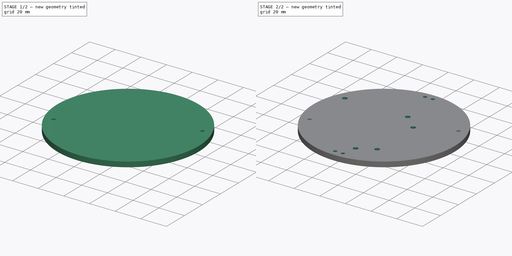
[diagram: build sequence overview — one tinted view per stage of 2, left to right]
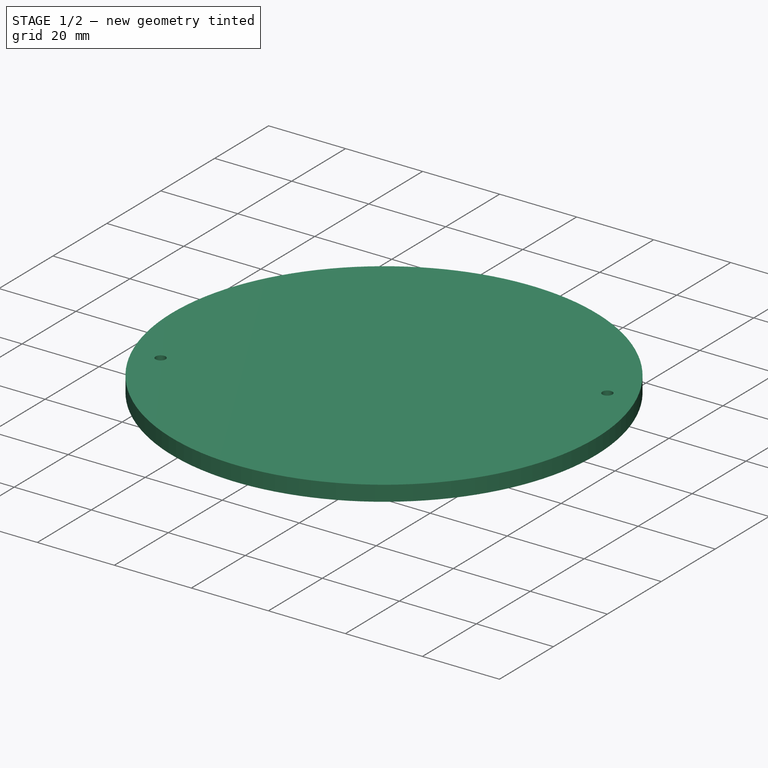
[diagram: stage 1 of 2 — iso view after this stage's code; geometry added in this stage tinted green]
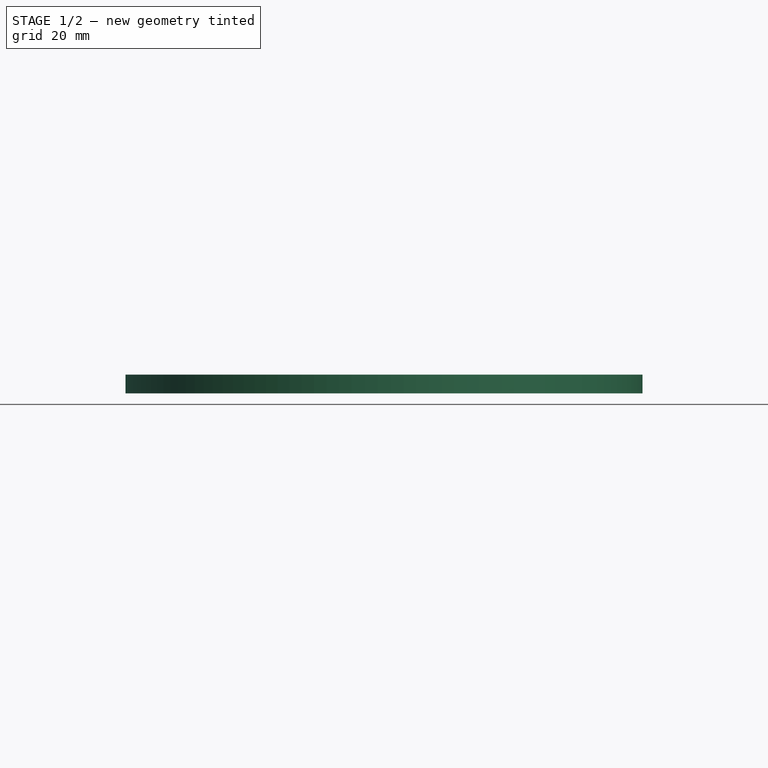
[diagram: stage 1 of 2 — front view after this stage's code; geometry added in this stage tinted green]
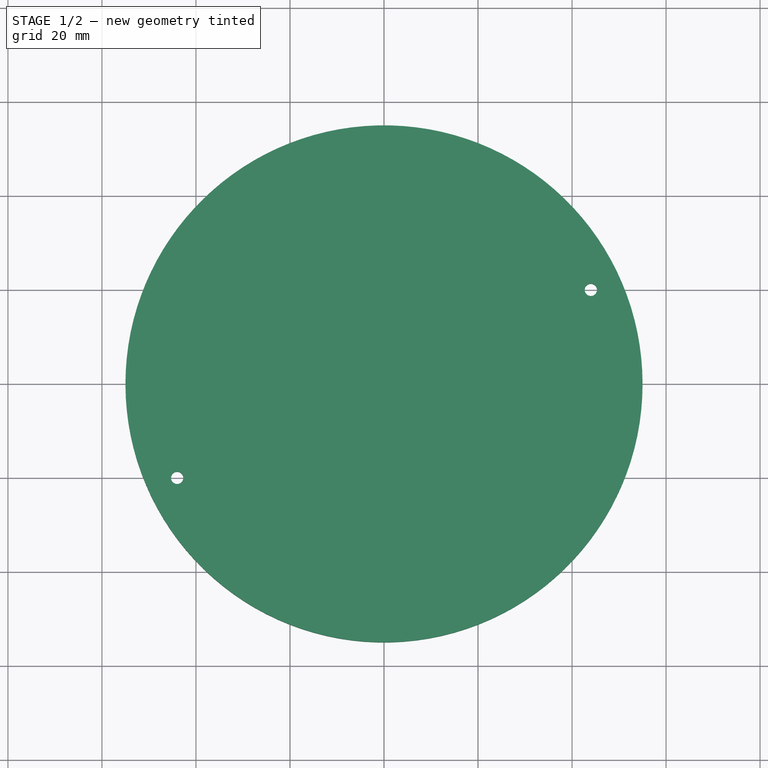
[diagram: stage 1 of 2 — top view after this stage's code; geometry added in this stage tinted green]
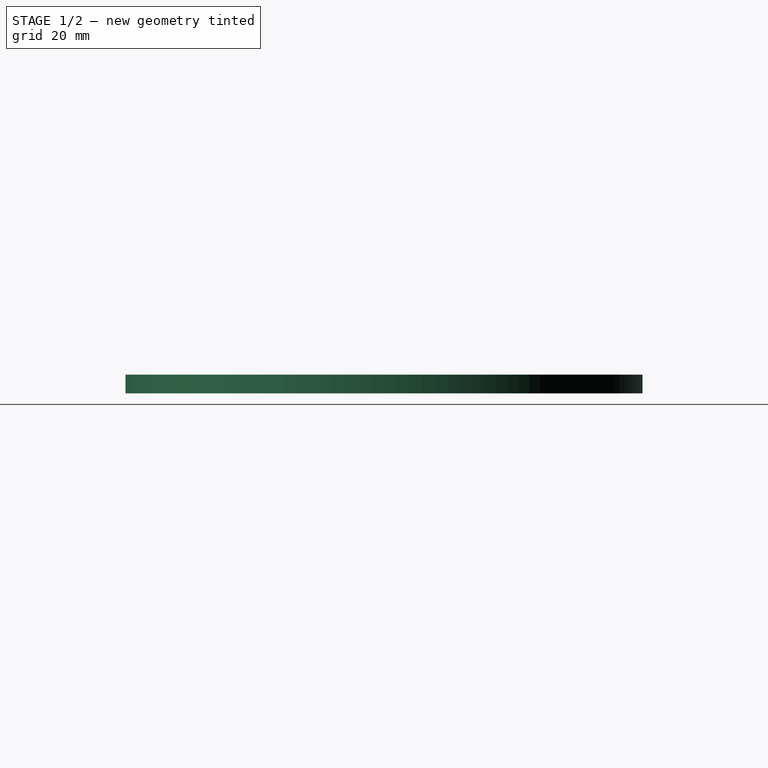
[diagram: stage 1 of 2 — right view after this stage's code; geometry added in this stage tinted green]
FCSTD DOCUMENT  (FreeCAD 0.21R33668 +26 (Git))
Label: board_top
License: All rights reserved
LicenseURL: https://en.wikipedia.org/wiki/All_rights_reserved
objects: Sketcher::SketchObject×4, PartDesign::Pocket×3, PartDesign::Pad×1, PartDesign::Body×1
note: 13 computed .brp shape members not serialized (recipe doc carries the construction recipe); baked Part::Feature solids carry a one-line shape summary decoded from their .brp

FEATURE [Sketcher::SketchObject] Sketch
  FullyConstrained = false
  MapMode = 5
  Support = -> [XY_Plane]
  sketch-geometry (2):
    g0: Circle CenterX=0 CenterY=0 CenterZ=0 NormalX=0 NormalY=0 NormalZ=1 AngleXU=0 Radius=55
    g1: GeomPoint X=-46.4818 Y=29.4015 Z=0
  constraints (3):
    c: Coincident(g0,g-1)
    c: PointOnObject(g1,g0)
    c: Distance(g1,g0) = 55
FEATURE [PartDesign::Pad] Pad
  Direction = (0,0,1)
  Length = 4
  Length2 = 10
  Profile = -> Sketch
  ReferenceAxis = -> Sketch [N_Axis]
  Type = 0
FEATURE [Sketcher::SketchObject] Sketch003
  FullyConstrained = false
  MapMode = 5
  Placement = pos=(0,0,4) rot=(0,0,1;0rad)
  sketch-geometry (10):
    g0: Circle CenterX=44 CenterY=20 CenterZ=0 NormalX=0 NormalY=0 NormalZ=1 AngleXU=0 Radius=5
    g1: Circle CenterX=-44 CenterY=-20 CenterZ=0 NormalX=0 NormalY=0 NormalZ=1 AngleXU=0 Radius=5
    g2: GeomPoint X=-39.0947 Y=-19.0316 Z=0
    g3: GeomPoint X=47.6682 Y=23.3977 Z=0
    g4: LineSegment StartX=0 StartY=-20 StartZ=0 EndX=-44 EndY=-20 EndZ=0
    g5: LineSegment StartX=0 StartY=20 StartZ=0 EndX=44 EndY=20 EndZ=0
    g6: Circle CenterX=-44 CenterY=-20 CenterZ=0 NormalX=0 NormalY=0 NormalZ=1 AngleXU=0 Radius=1.3
    g7: GeomPoint X=-43.3125 Y=-18.8967 Z=0
    g8: Circle CenterX=44 CenterY=20 CenterZ=0 NormalX=0 NormalY=0 NormalZ=1 AngleXU=0 Radius=1.3
    g9: GeomPoint X=43.0923 Y=20.9307 Z=0
  constraints (20):
    c: PointOnObject(g2,g1)
    c: PointOnObject(g3,g0)
    c: Distance(g3,g0) = 5
    c: Distance(g1,g2) = 5
    c: PointOnObject(g4,g-2)
    c: Coincident(g4,g1)
    c: Horizontal(g4)
    c: PointOnObject(g5,g-2)
    c: Coincident(g5,g0)
    c: Horizontal(g5)
    c: Distance(g4) = 44
    c: Distance(g5) = 44
    c: Distance(g5,g-1) = 20
    c: Distance(g-1,g4) = 20
    c: Coincident(g6,g1)
    c: PointOnObject(g7,g6)
    c: Coincident(g8,g0)
    c: PointOnObject(g9,g8)
    c: Distance(g9,g8) = 1.3
    c: Distance(g7,g6) = 1.3
FEATURE [PartDesign::Pocket] Pocket001
  BaseFeature = -> Pad
  Direction = (0,0,-1)
  Length = 5
  Length2 = 5
  Profile = -> Sketch003
  ReferenceAxis = -> Sketch003 [N_Axis]
  Type = 0
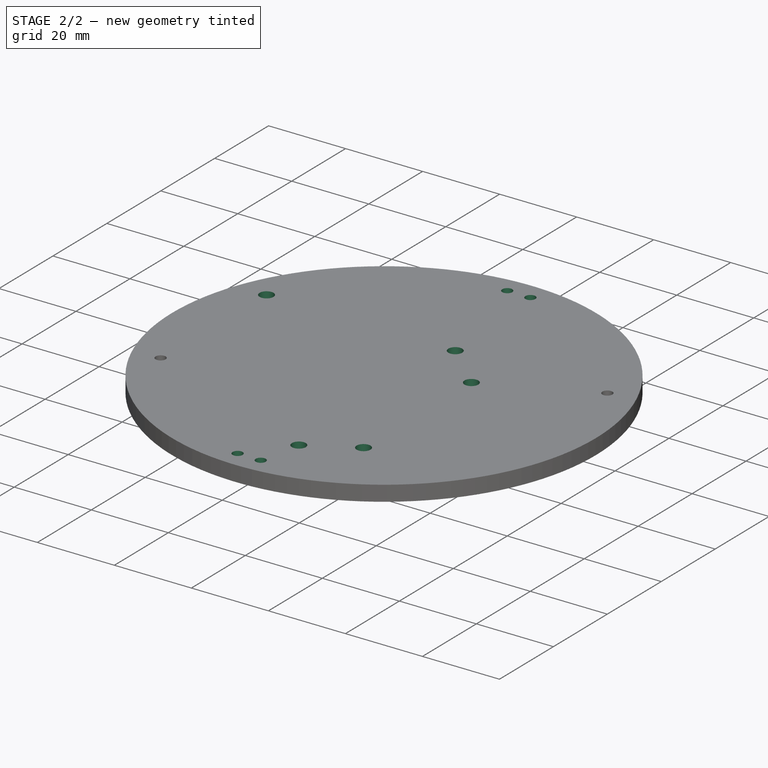
[diagram: stage 2 of 2 — iso view after this stage's code; geometry added in this stage tinted green]
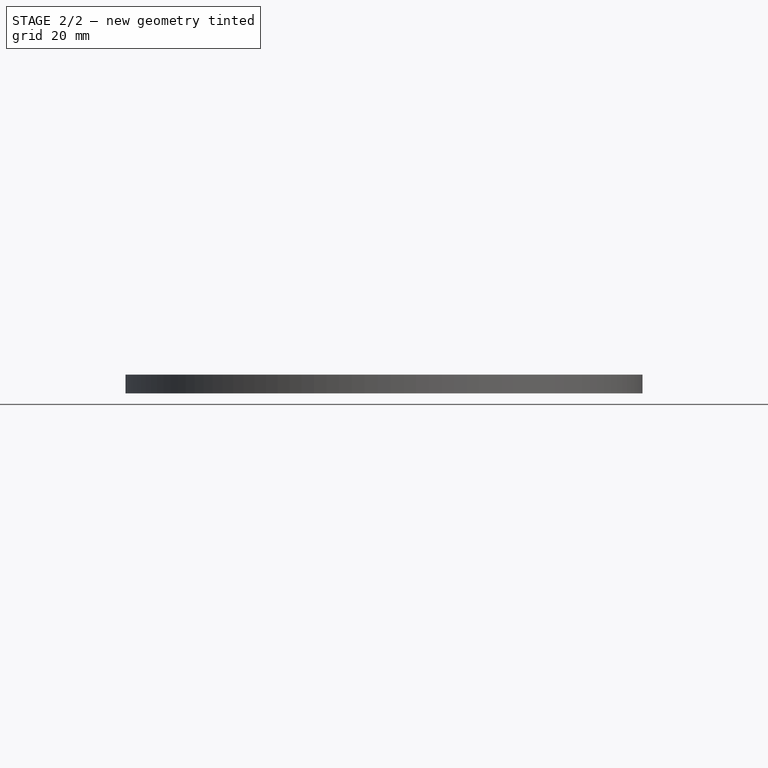
[diagram: stage 2 of 2 — front view after this stage's code; geometry added in this stage tinted green]
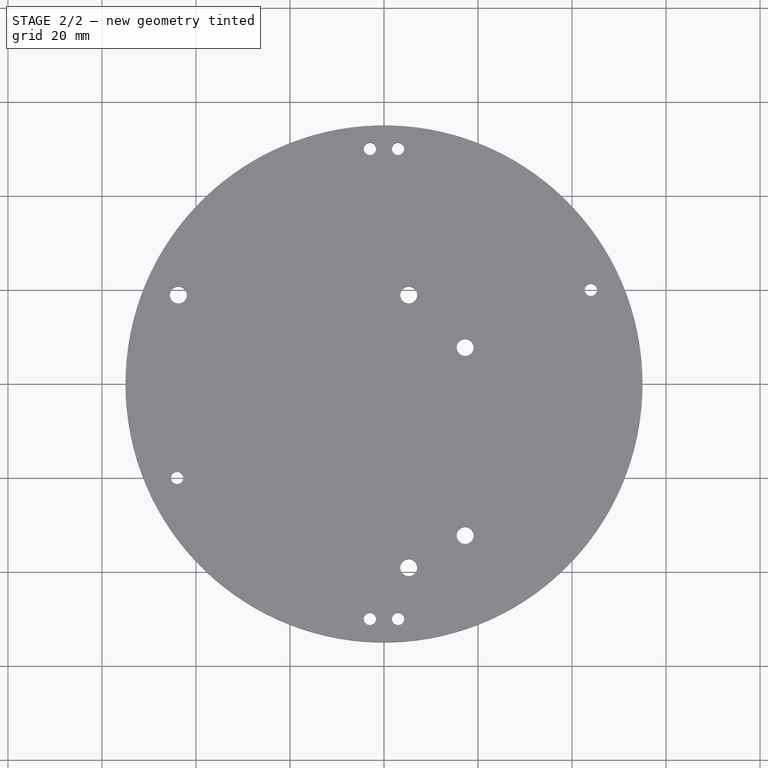
[diagram: stage 2 of 2 — top view after this stage's code; geometry added in this stage tinted green]
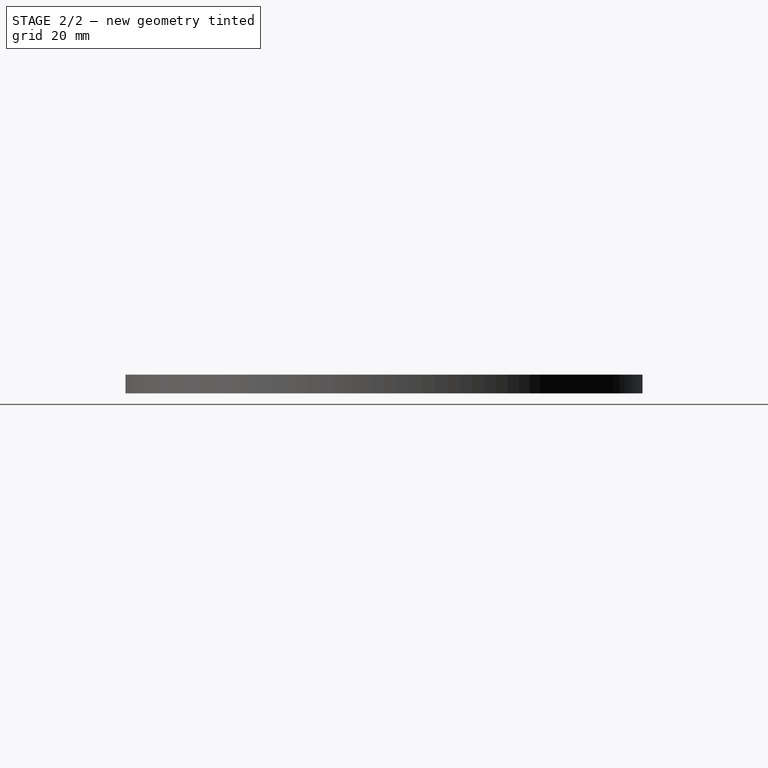
[diagram: stage 2 of 2 — right view after this stage's code; geometry added in this stage tinted green]
FEATURE [Sketcher::SketchObject] Sketch004
  FullyConstrained = false
  MapMode = 5
  Placement = pos=(0,0,4) rot=(0,0,1;0rad)
  Support = -> [Pocket001]
  sketch-geometry (14):
    g0: GeomPoint X=0 Y=50 Z=0
    g1: GeomPoint X=0 Y=-50 Z=0
    g2: LineSegment StartX=0 StartY=-50 StartZ=0 EndX=3 EndY=-50 EndZ=0
    g3: LineSegment StartX=0 StartY=-50 StartZ=0 EndX=-3 EndY=-50 EndZ=0
    g4: Circle CenterX=3 CenterY=-50 CenterZ=0 NormalX=0 NormalY=0 NormalZ=1 AngleXU=0 Radius=1.3
    g5: Circle CenterX=-3 CenterY=-50 CenterZ=0 NormalX=0 NormalY=0 NormalZ=1 AngleXU=0 Radius=1.3
    g6: GeomPoint X=-1.99174 Y=-49.1794 Z=0
    g7: GeomPoint X=2.30947 Y=-48.8986 Z=0
    g8: LineSegment StartX=0 StartY=50 StartZ=0 EndX=-3 EndY=50 EndZ=0
    g9: LineSegment StartX=0 StartY=50 StartZ=0 EndX=3 EndY=50 EndZ=0
    g10: Circle CenterX=-3 CenterY=50 CenterZ=0 NormalX=0 NormalY=0 NormalZ=1 AngleXU=0 Radius=1.3
    g11: Circle CenterX=3 CenterY=50 CenterZ=0 NormalX=0 NormalY=0 NormalZ=1 AngleXU=0 Radius=1.3
    g12: GeomPoint X=-2.06421 Y=50.9024 Z=0
    g13: GeomPoint X=2.70521 Y=51.2661 Z=0
  constraints (28):
    c: PointOnObject(g0,g-2)
    c: PointOnObject(g1,g-2)
    c: Distance(g0,g-1) = 50
    c: Distance(g1,g-1) = 50
    c: Coincident(g2,g1)
    c: Horizontal(g2)
    c: Coincident(g3,g2)
    c: Horizontal(g3)
    c: Distance(g2) = 3
    c: Distance(g3) = 3
    c: Coincident(g4,g2)
    c: Coincident(g5,g3)
    c: PointOnObject(g6,g5)
    c: PointOnObject(g7,g4)
    c: Distance(g5,g6) = 1.3
    c: Distance(g7,g4) = 1.3
    c: Coincident(g8,g0)
    c: Coincident(g9,g8)
    c: Horizontal(g8)
    c: Horizontal(g9)
    c: Coincident(g10,g8)
    c: Coincident(g11,g9)
    c: Distance(g9) = 3
    c: Distance(g8) = 3
    c: PointOnObject(g12,g10)
    c: PointOnObject(g13,g11)
    c: Distance(g10,g12) = 1.3
    c: Distance(g13,g11) = 1.3
FEATURE [PartDesign::Pocket] Pocket
  BaseFeature = -> Pocket001
  Direction = (0,0,-1)
  Length = 5
  Length2 = 5
  Profile = -> Sketch004
  ReferenceAxis = -> Sketch004 [N_Axis]
  Type = 0
FEATURE [Sketcher::SketchObject] Sketch005
  FullyConstrained = false
  MapMode = 5
  Placement = pos=(0,0,0) rot=(1,0,0;3.14159rad)
  Support = -> [Pocket]
  sketch-geometry (34):
    g0: LineSegment StartX=-43.7417 StartY=39.0847 StartZ=0 EndX=5.25831 EndY=39.0847 EndZ=0
    g1: LineSegment StartX=5.25831 StartY=39.0847 StartZ=0 EndX=5.25831 EndY=-45.9153 EndZ=0
    g2: LineSegment StartX=5.25831 StartY=-45.9153 StartZ=0 EndX=-43.7417 EndY=-45.9153 EndZ=0
    g3: LineSegment StartX=-43.7417 StartY=-45.9153 StartZ=0 EndX=-43.7417 EndY=39.0847 EndZ=0
    g4: GeomPoint X=-43.7417 Y=-18.9153 Z=0
    g5: LineSegment StartX=-43.7417 StartY=-18.9153 StartZ=0 EndX=5.25831 EndY=-18.9153 EndZ=0
    g6: LineSegment StartX=12.2622 StartY=37.2437 StartZ=0 EndX=64.2622 EndY=37.2437 EndZ=0
    g7: LineSegment StartX=64.2622 StartY=37.2437 StartZ=0 EndX=64.2622 EndY=-12.7563 EndZ=0
    g8: LineSegment StartX=64.2622 StartY=-12.7563 StartZ=0 EndX=12.2622 EndY=-12.7563 EndZ=0
    g9: LineSegment StartX=12.2622 StartY=-12.7563 StartZ=0 EndX=12.2622 EndY=37.2437 EndZ=0
    g10: Circle CenterX=57.2622 CenterY=32.2437 CenterZ=0 NormalX=0 NormalY=0 NormalZ=1 AngleXU=0 Radius=1.8
    g11: Circle CenterX=17.2622 CenterY=32.2437 CenterZ=0 NormalX=0 NormalY=0 NormalZ=1 AngleXU=0 Radius=1.8
    g12: Circle CenterX=17.2622 CenterY=-7.75634 CenterZ=0 NormalX=0 NormalY=0 NormalZ=1 AngleXU=0 Radius=1.8
    g13: Circle CenterX=57.2622 CenterY=-7.75634 CenterZ=0 NormalX=0 NormalY=0 NormalZ=1 AngleXU=0 Radius=1.8
    g14: GeomPoint X=19.0309 Y=32.5778 Z=0
    g15: GeomPoint X=59.0176 Y=32.6416 Z=0
    g16: GeomPoint X=59.0249 Y=-7.39206 Z=0
    g17: GeomPoint X=19.0055 Y=-7.30831 Z=0
    g18: LineSegment StartX=12.2622 StartY=32.2437 StartZ=0 EndX=17.2622 EndY=32.2437 EndZ=0
    g19: LineSegment StartX=17.2622 StartY=37.2437 StartZ=0 EndX=17.2622 EndY=32.2437 EndZ=0
    g20: LineSegment StartX=57.2622 StartY=37.2437 StartZ=0 EndX=57.2622 EndY=32.2437 EndZ=0
    g21: LineSegment StartX=64.2622 StartY=32.2437 StartZ=0 EndX=57.2622 EndY=32.2437 EndZ=0
    g22: LineSegment StartX=12.2622 StartY=-7.75634 StartZ=0 EndX=17.2622 EndY=-7.75634 EndZ=0
    g23: LineSegment StartX=17.2622 StartY=-12.7563 StartZ=0 EndX=17.2622 EndY=-7.75634 EndZ=0
    g24: LineSegment StartX=64.2622 StartY=-7.75634 StartZ=0 EndX=57.2622 EndY=-7.75634 EndZ=0
    g25: LineSegment StartX=57.2622 StartY=-12.7563 StartZ=0 EndX=57.2622 EndY=-7.75634 EndZ=0
    g26: Circle CenterX=-43.7417 CenterY=39.0847 CenterZ=0 NormalX=0 NormalY=0 NormalZ=1 AngleXU=0 Radius=1.8
    g27: Circle CenterX=5.25831 CenterY=39.0847 CenterZ=0 NormalX=0 NormalY=0 NormalZ=1 AngleXU=0 Radius=1.8
    g28: Circle CenterX=-43.7417 CenterY=-18.9153 CenterZ=0 NormalX=0 NormalY=0 NormalZ=1 AngleXU=0 Radius=1.8
    g29: Circle CenterX=5.25831 CenterY=-18.9153 CenterZ=0 NormalX=0 NormalY=0 NormalZ=1 AngleXU=0 Radius=1.8
    g30: GeomPoint X=-44.2702 Y=40.8054 Z=0
    g31: GeomPoint X=4.73047 Y=40.8056 Z=0
    g32: GeomPoint X=-44.2703 Y=-17.1947 Z=0
    g33: GeomPoint X=4.716 Y=-17.1989 Z=0
  constraints (77):
    c: Coincident(g0,g1)
    c: Coincident(g1,g2)
    c: Coincident(g2,g3)
    c: Coincident(g3,g0)
    c: Horizontal(g0)
    c: Horizontal(g2)
    c: Vertical(g1)
    c: Vertical(g3)
    c: Distance(g1) = 85
    c: Distance(g0) = 49
    c: PointOnObject(g4,g3)
    c: Distance(g4,g0) = 58
    c: Coincident(g5,g4)
    c: PointOnObject(g5,g1)
    c: Horizontal(g5)
    c: Coincident(g6,g7)
    c: Coincident(g7,g8)
    c: Coincident(g8,g9)
    c: Coincident(g9,g6)
    c: Horizontal(g6)
    c: Horizontal(g8)
    c: Vertical(g7)
    c: Vertical(g9)
    c: Distance(g6) = 52
    c: Distance(g9) = 50
    c: PointOnObject(g14,g11)
    c: PointOnObject(g15,g10)
    c: PointOnObject(g16,g13)
    c: PointOnObject(g17,g12)
    c: Distance(g12,g17) = 1.8
    c: Distance(g16,g13) = 1.8
    c: Distance(g15,g10) = 1.8
    c: Distance(g11,g14) = 1.8
    c: PointOnObject(g18,g9)
    c: Coincident(g18,g11)
    c: Horizontal(g18)
    c: PointOnObject(g19,g6)
    c: Coincident(g19,g11)
    c: Vertical(g19)
    c: Distance(g18) = 5
    c: Distance(g19) = 5
    c: PointOnObject(g20,g6)
    c: Coincident(g20,g10)
    c: Vertical(g20)
    c: PointOnObject(g21,g7)
    c: Coincident(g21,g10)
    c: Horizontal(g21)
    c: Distance(g21) = 7
    c: Distance(g20) = 5
    c: PointOnObject(g22,g9)
    c: Coincident(g22,g12)
    c: PointOnObject(g23,g8)
    c: Coincident(g23,g12)
    c: Vertical(g23)
    c: Horizontal(g22)
    c: PointOnObject(g24,g7)
    c: Coincident(g24,g13)
    c: Horizontal(g24)
    c: PointOnObject(g25,g8)
    c: Coincident(g25,g13)
    c: Vertical(g25)
    c: Distance(g24) = 7
    c: Distance(g25) = 5
    c: Distance(g22) = 5
    c: Distance(g23) = 5
    c: Coincident(g26,g0)
    c: Coincident(g27,g0)
    c: Coincident(g28,g4)
    c: Coincident(g29,g5)
    c: PointOnObject(g30,g26)
    c: PointOnObject(g31,g27)
    c: PointOnObject(g32,g28)
    c: PointOnObject(g33,g29)
    c: Distance(g26,g30) = 1.8
    c: Distance(g27,g31) = 1.8
    c: Distance(g28,g32) = 1.8
    c: Distance(g33,g29) = 1.8
FEATURE [PartDesign::Pocket] Pocket002
  BaseFeature = -> Pocket
  Direction = (0,0,1)
  Length = 5
  Length2 = 5
  Profile = -> Sketch005
  ReferenceAxis = -> Sketch005 [N_Axis]
  Type = 0
FEATURE [PartDesign::Body] Body
  Group = -> [Sketch,Pad,Sketch003,Pocket001,Sketch004,Pocket,Sketch005,Pocket002]
  Origin = -> Origin
  Tip = -> Pocket002
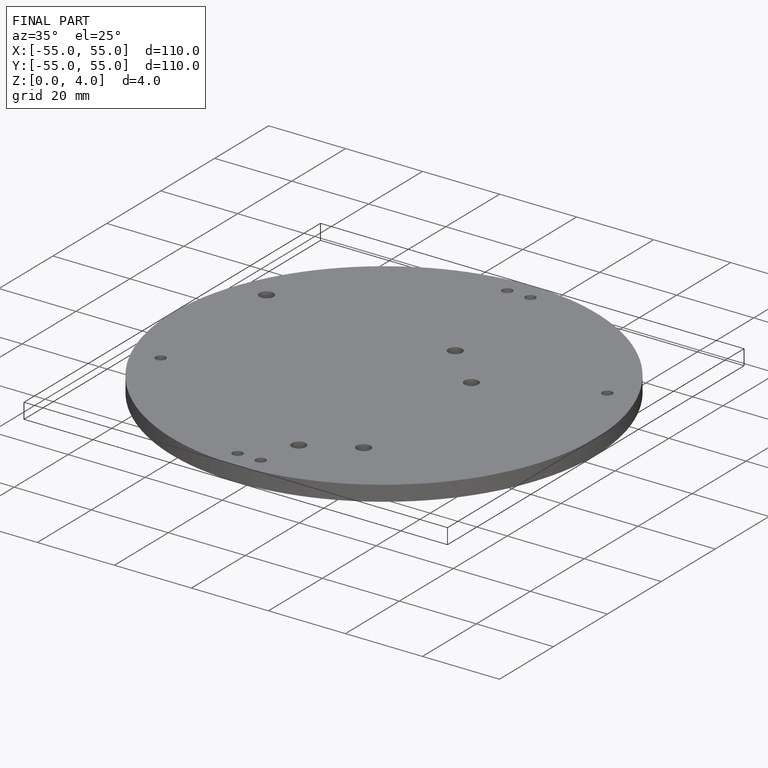
[diagram: finished part — iso view with bounding-box wireframe]
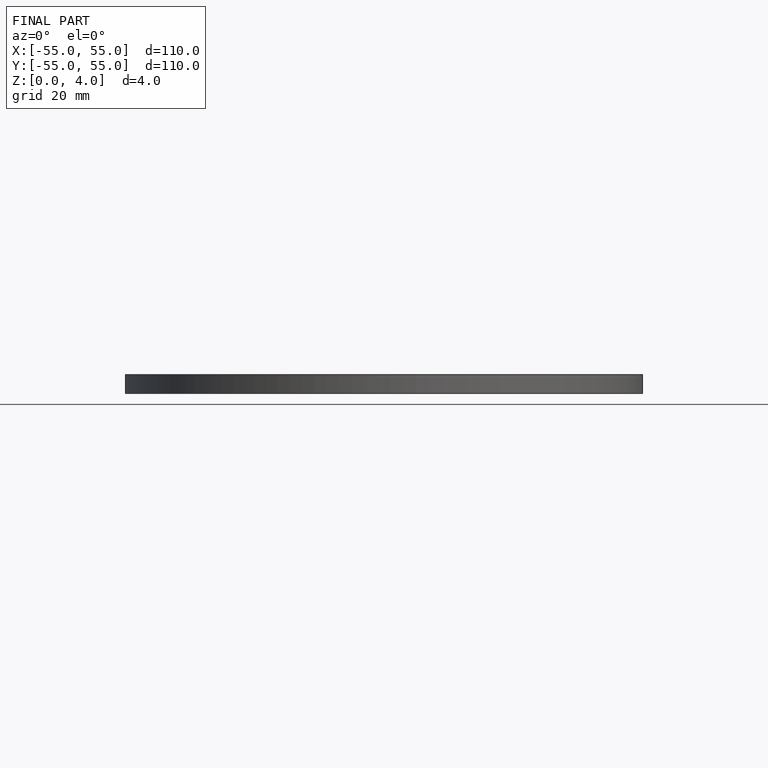
[diagram: finished part — front view with bounding-box wireframe]
